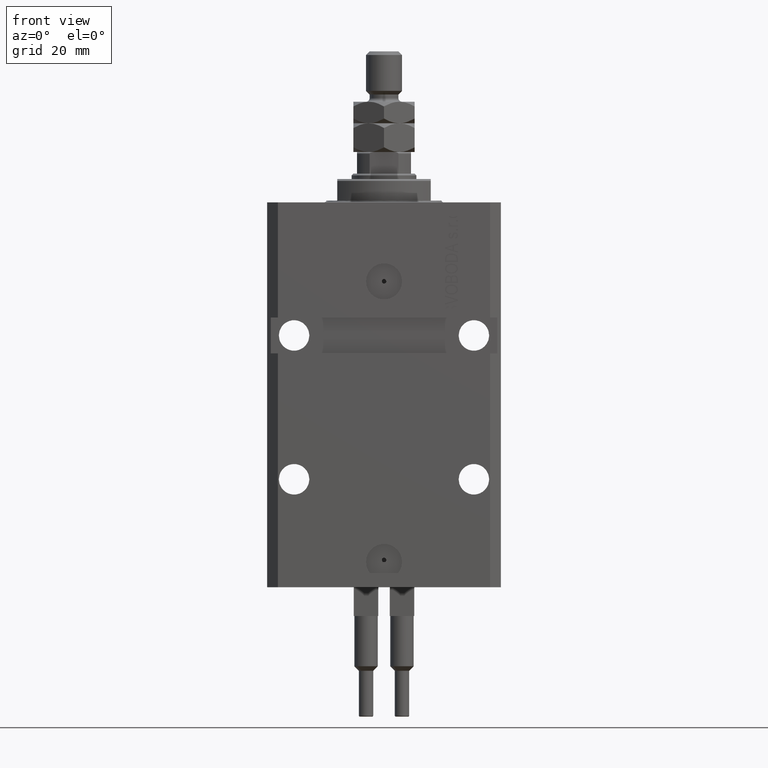
[diagram: clean part render]
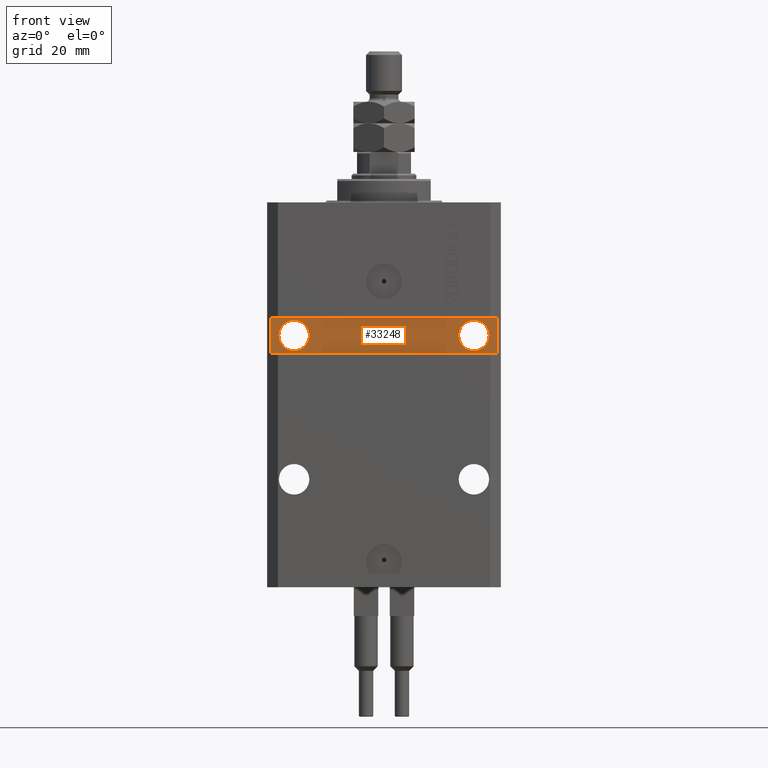
[diagram: same view with one face highlighted and labeled with its STEP entity id]
A machine part, front view. The second image highlights one B-rep face of the part: STEP entity #33248.
In plain terms, the highlighted planar face has unit normal (0, -1, 0).
Its self-contained STEP definition (entity closure, byte-faithful):
#16 = VERTEX_POINT ( 'NONE', #37731 ) ;
#2309 = CARTESIAN_POINT ( 'NONE',  ( -20.75000000000621014, -20.49999999999950262, -37.00000000000000000 ) ) ;
#3458 = ORIENTED_EDGE ( 'NONE', *, *, #44631, .F. ) ;
#3638 = ORIENTED_EDGE ( 'NONE', *, *, #24564, .T. ) ;
#5178 = VERTEX_POINT ( 'NONE', #32900 ) ;
#7227 = DIRECTION ( 'NONE',  ( 1.000000000000000000, 1.067522139062765303E-16, 1.067522139062765303E-16 ) ) ;
#7276 = ORIENTED_EDGE ( 'NONE', *, *, #10454, .F. ) ;
#7772 = VERTEX_POINT ( 'NONE', #34681 ) ;
#7955 = CARTESIAN_POINT ( 'NONE',  ( -31.49999999999650413, -20.49999999999950262, -107.0000000000000000 ) ) ;
#9164 = CIRCLE ( 'NONE', #14788, 4.249999999989050536 ) ;
#10454 = EDGE_CURVE ( 'NONE', #16, #7772, #9164, .T. ) ;
#10814 = FACE_OUTER_BOUND ( 'NONE', #45154, .T. ) ;
#10887 = VECTOR ( 'NONE', #30764, 1000.000000000000000 ) ;
#10936 = VERTEX_POINT ( 'NONE', #21160 ) ;
#11024 = VECTOR ( 'NONE', #7227, 1000.000000000000000 ) ;
#11308 = CARTESIAN_POINT ( 'NONE',  ( 2.166708070385810581E-15, -20.49999999999949907, 0.000000000000000000 ) ) ;
#13943 = DIRECTION ( 'NONE',  ( 1.000000000000000000, 0.000000000000000000, 0.000000000000000000 ) ) ;
#14788 = AXIS2_PLACEMENT_3D ( 'NONE', #44949, #17089, #21638 ) ;
#14830 = DIRECTION ( 'NONE',  ( 0.000000000000000000, 0.000000000000000000, -1.000000000000000000 ) ) ;
#15616 = ORIENTED_EDGE ( 'NONE', *, *, #29080, .F. ) ;
#16206 = ORIENTED_EDGE ( 'NONE', *, *, #21066, .T. ) ;
#17089 = DIRECTION ( 'NONE',  ( 1.394545208792185644E-16, -1.000000000000000000, 1.232595164407830946E-32 ) ) ;
#17502 = DIRECTION ( 'NONE',  ( 1.101411730780568590E-16, -1.000000000000000000, 0.000000000000000000 ) ) ;
#18849 = LINE ( 'NONE', #34320, #10887 ) ;
#19326 = AXIS2_PLACEMENT_3D ( 'NONE', #11308, #30101, #49334 ) ;
#20738 = VERTEX_POINT ( 'NONE', #50064 ) ;
#20802 = VERTEX_POINT ( 'NONE', #38675 ) ;
#21066 = EDGE_CURVE ( 'NONE', #10936, #20802, #18849, .T. ) ;
#21160 = CARTESIAN_POINT ( 'NONE',  ( 31.49999999999651124, -20.49999999999949196, -32.00000000000000711 ) ) ;
#21458 = EDGE_CURVE ( 'NONE', #50020, #5178, #42482, .T. ) ;
#21638 = DIRECTION ( 'NONE',  ( 1.000000000000000000, 0.000000000000000000, 0.000000000000000000 ) ) ;
#22493 = DIRECTION ( 'NONE',  ( 1.000000000000000000, 0.000000000000000000, 0.000000000000000000 ) ) ;
#23433 = DIRECTION ( 'NONE',  ( 0.000000000000000000, 0.000000000000000000, 1.000000000000000000 ) ) ;
#24564 = EDGE_CURVE ( 'NONE', #27811, #20738, #26262, .T. ) ;
#26262 = LINE ( 'NONE', #45760, #11024 ) ;
#26685 = ORIENTED_EDGE ( 'NONE', *, *, #21458, .F. ) ;
#26804 = CARTESIAN_POINT ( 'NONE',  ( 25.00000000000000711, -20.49999999999949551, -36.99999999999999289 ) ) ;
#26865 = AXIS2_PLACEMENT_3D ( 'NONE', #26804, #34416, #22493 ) ;
#27593 = VECTOR ( 'NONE', #23433, 1000.000000000000000 ) ;
#27811 = VERTEX_POINT ( 'NONE', #30854 ) ;
#29080 = EDGE_CURVE ( 'NONE', #10936, #20738, #38654, .T. ) ;
#30101 = DIRECTION ( 'NONE',  ( 1.067522139062765303E-16, -1.000000000000000000, 0.000000000000000000 ) ) ;
#30764 = DIRECTION ( 'NONE',  ( -1.000000000000000000, -1.067522139062765303E-16, 1.067522139062765303E-16 ) ) ;
#30854 = CARTESIAN_POINT ( 'NONE',  ( -31.49999999999650413, -20.49999999999949907, -41.99999999999999289 ) ) ;
#31672 = AXIS2_PLACEMENT_3D ( 'NONE', #38508, #40764, #32930 ) ;
#32457 = EDGE_LOOP ( 'NONE', ( #46790, #7276 ) ) ;
#32737 = CARTESIAN_POINT ( 'NONE',  ( -24.99999999999999289, -20.49999999999950262, -37.00000000000000000 ) ) ;
#32900 = CARTESIAN_POINT ( 'NONE',  ( -29.24999999999377920, -20.49999999999950262, -37.00000000000000000 ) ) ;
#32930 = DIRECTION ( 'NONE',  ( 1.000000000000000000, 0.000000000000000000, 0.000000000000000000 ) ) ;
#33248 = ADVANCED_FACE ( 'NONE', ( #41243, #33415, #10814 ), #45543, .T. ) ;
#33415 = FACE_BOUND ( 'NONE', #41277, .T. ) ;
#34076 = CIRCLE ( 'NONE', #31672, 4.249999999993782751 ) ;
#34320 = CARTESIAN_POINT ( 'NONE',  ( 32.49999999999650413, -20.49999999999949196, -32.00000000000000711 ) ) ;
#34416 = DIRECTION ( 'NONE',  ( 1.394545208792185644E-16, -1.000000000000000000, 1.232595164407830946E-32 ) ) ;
#34681 = CARTESIAN_POINT ( 'NONE',  ( 29.24999999998905764, -20.49999999999949551, -36.99999999999999289 ) ) ;
#34837 = LINE ( 'NONE', #7955, #27593 ) ;
#37030 = EDGE_CURVE ( 'NONE', #27811, #20802, #34837, .T. ) ;
#37731 = CARTESIAN_POINT ( 'NONE',  ( 20.75000000001095657, -20.49999999999949551, -36.99999999999999289 ) ) ;
#38148 = CARTESIAN_POINT ( 'NONE',  ( 31.49999999999651124, -20.49999999999949551, -107.0000000000000000 ) ) ;
#38508 = CARTESIAN_POINT ( 'NONE',  ( -24.99999999999999289, -20.49999999999950262, -37.00000000000000000 ) ) ;
#38654 = LINE ( 'NONE', #38148, #38722 ) ;
#38675 = CARTESIAN_POINT ( 'NONE',  ( -31.49999999999650413, -20.49999999999950262, -32.00000000000000000 ) ) ;
#38722 = VECTOR ( 'NONE', #14830, 1000.000000000000000 ) ;
#40241 = ORIENTED_EDGE ( 'NONE', *, *, #37030, .F. ) ;
#40764 = DIRECTION ( 'NONE',  ( 1.101411730780568590E-16, -1.000000000000000000, 0.000000000000000000 ) ) ;
#41243 = FACE_BOUND ( 'NONE', #32457, .T. ) ;
#41277 = EDGE_LOOP ( 'NONE', ( #26685, #3458 ) ) ;
#42482 = CIRCLE ( 'NONE', #48971, 4.249999999993782751 ) ;
#44631 = EDGE_CURVE ( 'NONE', #5178, #50020, #34076, .T. ) ;
#44949 = CARTESIAN_POINT ( 'NONE',  ( 25.00000000000000711, -20.49999999999949551, -36.99999999999999289 ) ) ;
#45154 = EDGE_LOOP ( 'NONE', ( #16206, #40241, #3638, #15616 ) ) ;
#45543 = PLANE ( 'NONE',  #19326 ) ;
#45760 = CARTESIAN_POINT ( 'NONE',  ( -32.49999999999650413, -20.49999999999949907, -41.99999999999999289 ) ) ;
#46675 = EDGE_CURVE ( 'NONE', #7772, #16, #48721, .T. ) ;
#46790 = ORIENTED_EDGE ( 'NONE', *, *, #46675, .F. ) ;
#48721 = CIRCLE ( 'NONE', #26865, 4.249999999989050536 ) ;
#48971 = AXIS2_PLACEMENT_3D ( 'NONE', #32737, #17502, #13943 ) ;
#49334 = DIRECTION ( 'NONE',  ( 1.000000000000000000, 1.067522139062765303E-16, 0.000000000000000000 ) ) ;
#50020 = VERTEX_POINT ( 'NONE', #2309 ) ;
#50064 = CARTESIAN_POINT ( 'NONE',  ( 31.49999999999650413, -20.49999999999949196, -41.99999999999998579 ) ) ;